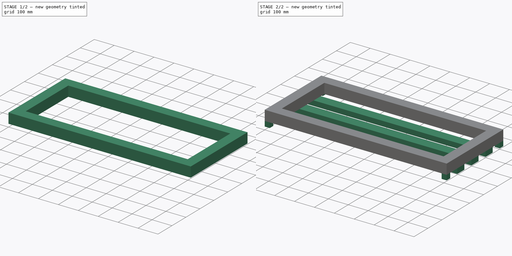
[diagram: build sequence overview — one tinted view per stage of 2, left to right]
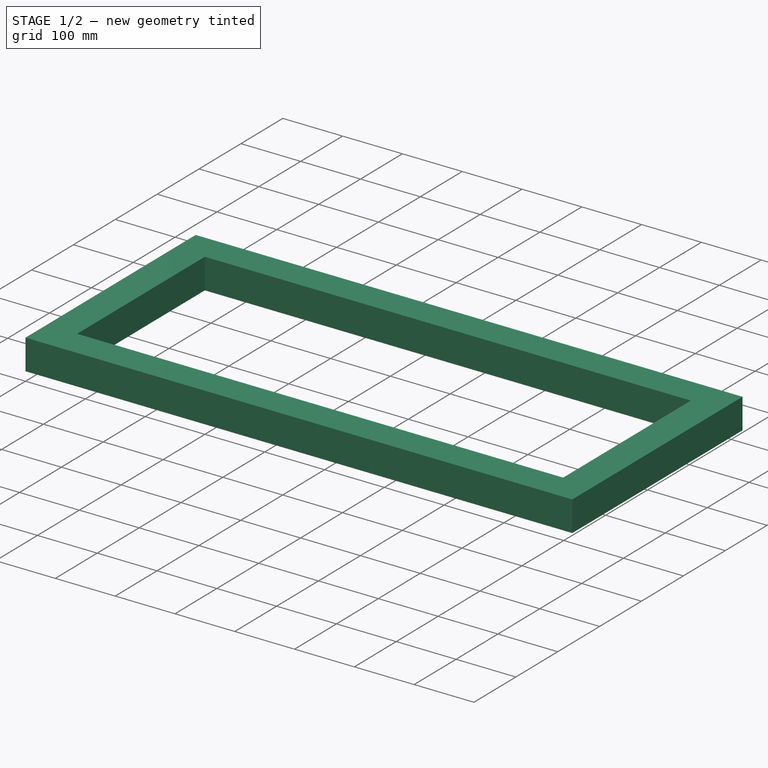
[diagram: stage 1 of 2 — iso view after this stage's code; geometry added in this stage tinted green]
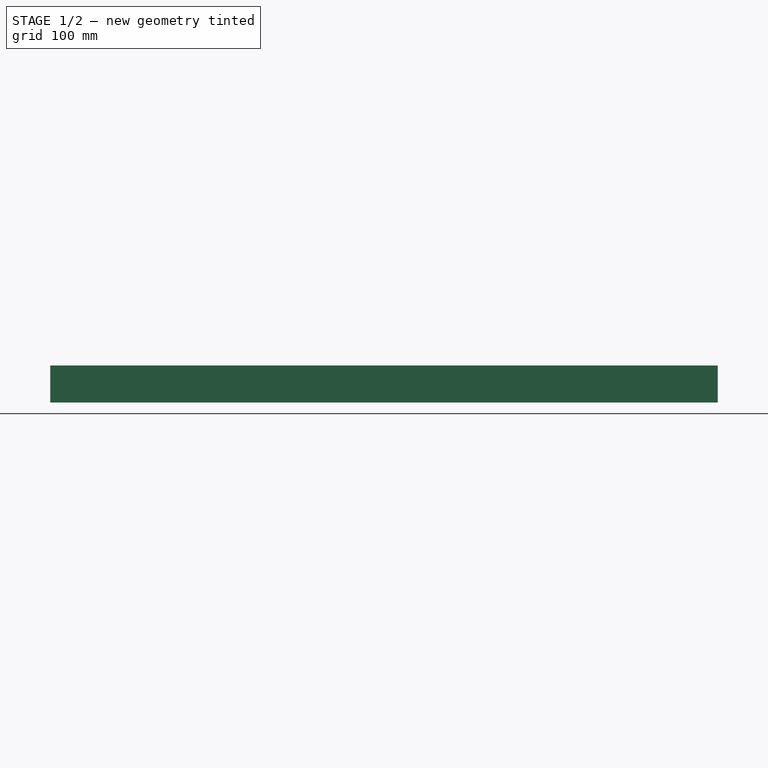
[diagram: stage 1 of 2 — front view after this stage's code; geometry added in this stage tinted green]
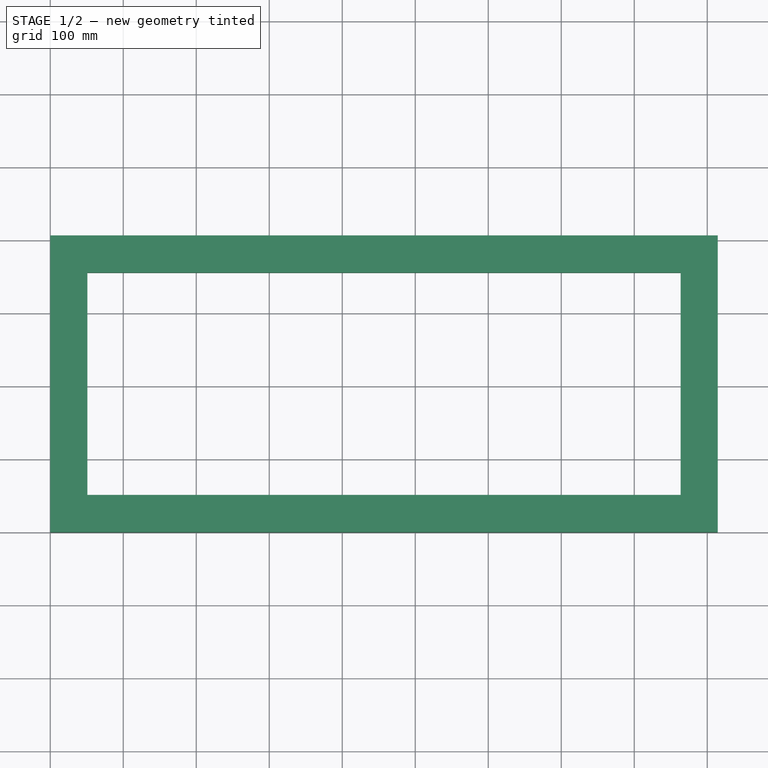
[diagram: stage 1 of 2 — top view after this stage's code; geometry added in this stage tinted green]
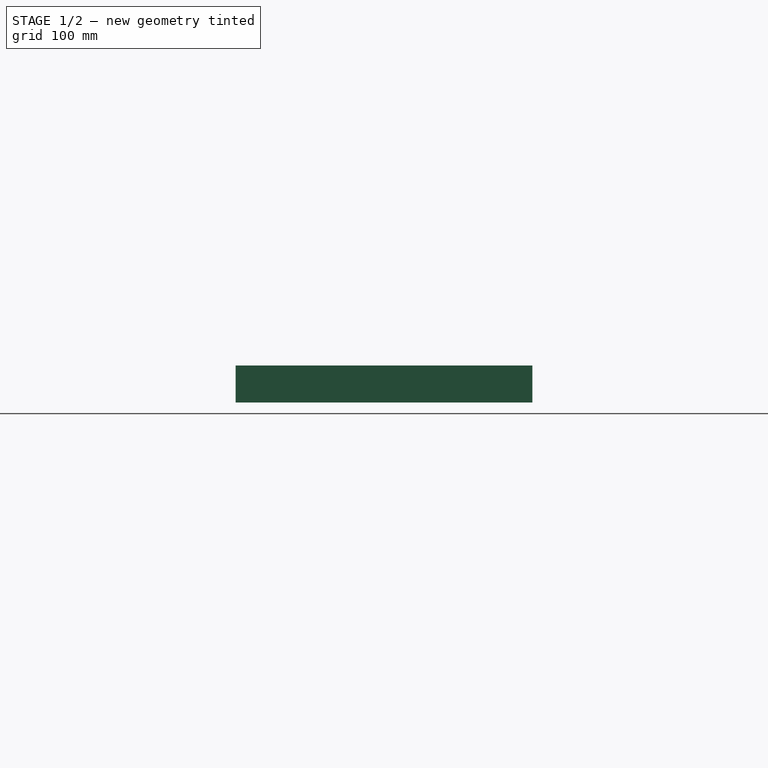
[diagram: stage 1 of 2 — right view after this stage's code; geometry added in this stage tinted green]
FCSTD DOCUMENT  (FreeCAD 0.19R24276 (Git))
Label: seat bench
License: All rights reserved
LicenseURL: http://en.wikipedia.org/wiki/All_rights_reserved
objects: Sketcher::SketchObject×4, PartDesign::Pad×3, PartDesign::Pocket×1, PartDesign::Body×1
note: 13 computed .brp shape members not serialized (recipe doc carries the construction recipe); baked Part::Feature solids carry a one-line shape summary decoded from their .brp

FEATURE [Sketcher::SketchObject] Sketch
  FullyConstrained = true
  MapMode = 5
  Support = -> [XY_Plane]
  sketch-geometry (4):
    g0: LineSegment StartX=0 StartY=0 StartZ=0 EndX=914.4 EndY=0 EndZ=0
    g1: LineSegment StartX=914.4 StartY=0 StartZ=0 EndX=914.4 EndY=406.4 EndZ=0
    g2: LineSegment StartX=914.4 StartY=406.4 StartZ=0 EndX=0 EndY=406.4 EndZ=0
    g3: LineSegment StartX=0 StartY=406.4 StartZ=0 EndX=0 EndY=0 EndZ=0
  constraints (11):
    c: Coincident(g0,g1)
    c: Coincident(g1,g2)
    c: Coincident(g2,g3)
    c: Coincident(g3,g0)
    c: Horizontal(g0)
    c: Horizontal(g2)
    c: Vertical(g1)
    c: Vertical(g3)
    c: Coincident(g0,g-1)
    c: DistanceX(g2,g2) = 914.4
    c: DistanceY(g3,g3) = 406.4
FEATURE [PartDesign::Pad] Pad
  Direction = (1,1,1)
  Length = 50.8
  Length2 = 100
  Profile = -> Sketch
  Type = 0
FEATURE [Sketcher::SketchObject] Sketch001
  ExternalGeometry = -> [Pad]
  FullyConstrained = true
  MapMode = 5
  Placement = pos=(0,0,50.8) rot=(0,0,1;0rad)
  Support = -> [Pad]
  sketch-geometry (4):
    g0: LineSegment StartX=50.8 StartY=355.6 StartZ=0 EndX=863.6 EndY=355.6 EndZ=0
    g1: LineSegment StartX=863.6 StartY=355.6 StartZ=0 EndX=863.6 EndY=50.8 EndZ=0
    g2: LineSegment StartX=863.6 StartY=50.8 StartZ=0 EndX=50.8 EndY=50.8 EndZ=0
    g3: LineSegment StartX=50.8 StartY=50.8 StartZ=0 EndX=50.8 EndY=355.6 EndZ=0
  constraints (12):
    c: Coincident(g0,g1)
    c: Coincident(g1,g2)
    c: Coincident(g2,g3)
    c: Coincident(g3,g0)
    c: Horizontal(g0)
    c: Horizontal(g2)
    c: Vertical(g1)
    c: Vertical(g3)
    c: DistanceX(g2,g2) = 812.8
    c: DistanceX(g-4,g0) = 50.8
    c: DistanceY(g1,g1) = 304.8
    c: DistanceY(g0,g-4) = 50.8
FEATURE [PartDesign::Pocket] Pocket
  BaseFeature = -> Pad
  Length = 5
  Length2 = 100
  Profile = -> Sketch001
  Type = 1
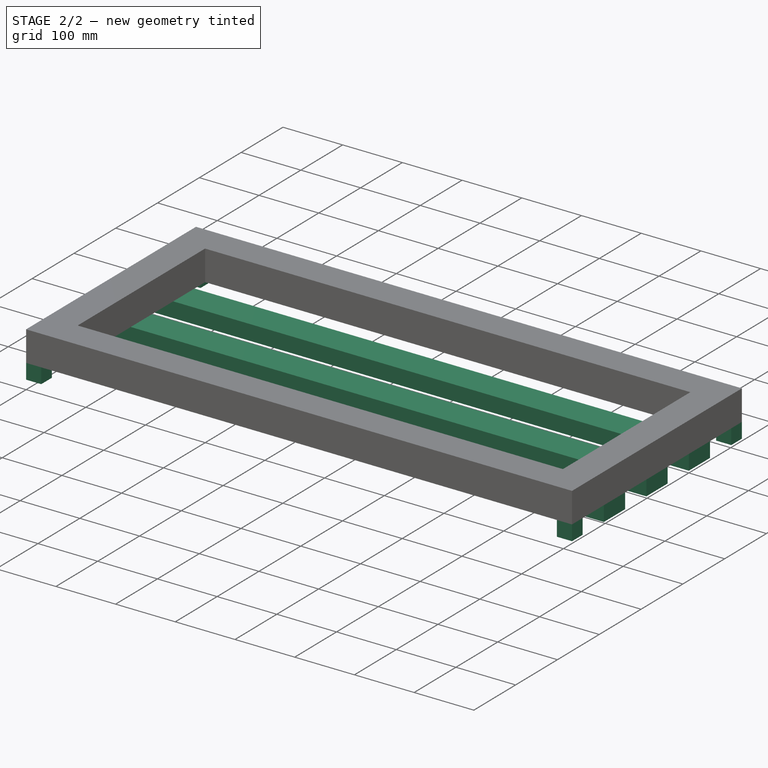
[diagram: stage 2 of 2 — iso view after this stage's code; geometry added in this stage tinted green]
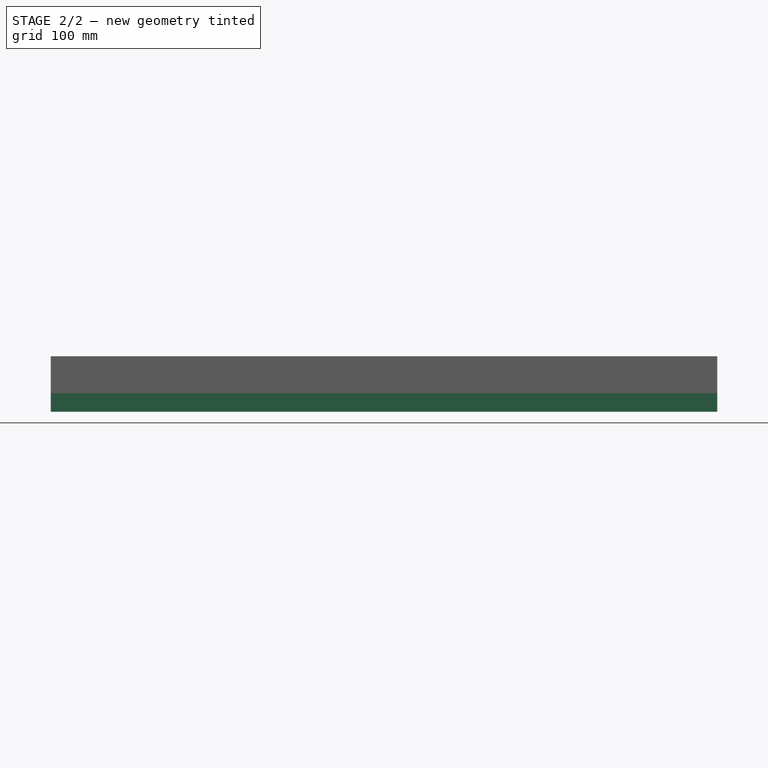
[diagram: stage 2 of 2 — front view after this stage's code; geometry added in this stage tinted green]
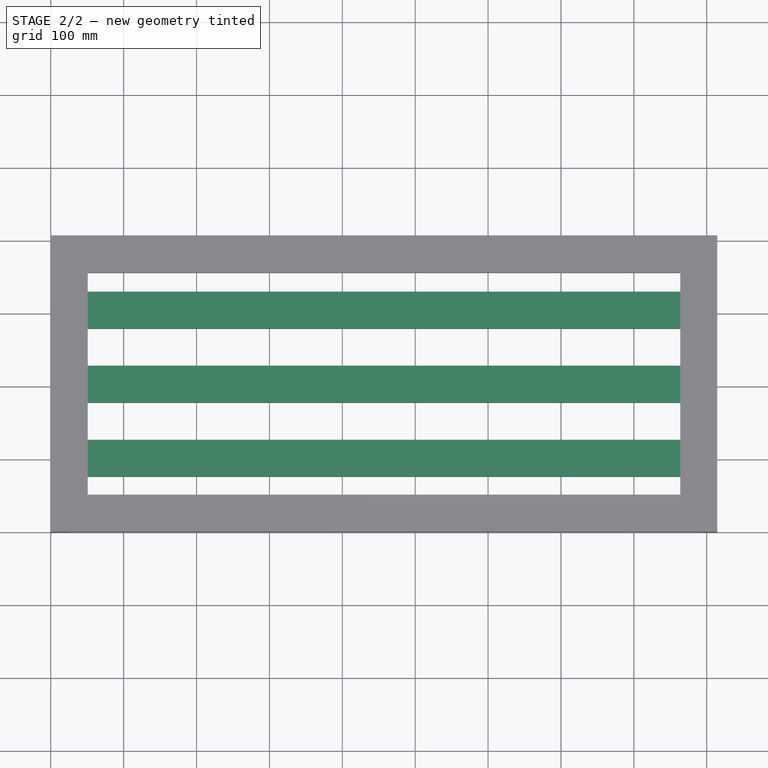
[diagram: stage 2 of 2 — top view after this stage's code; geometry added in this stage tinted green]
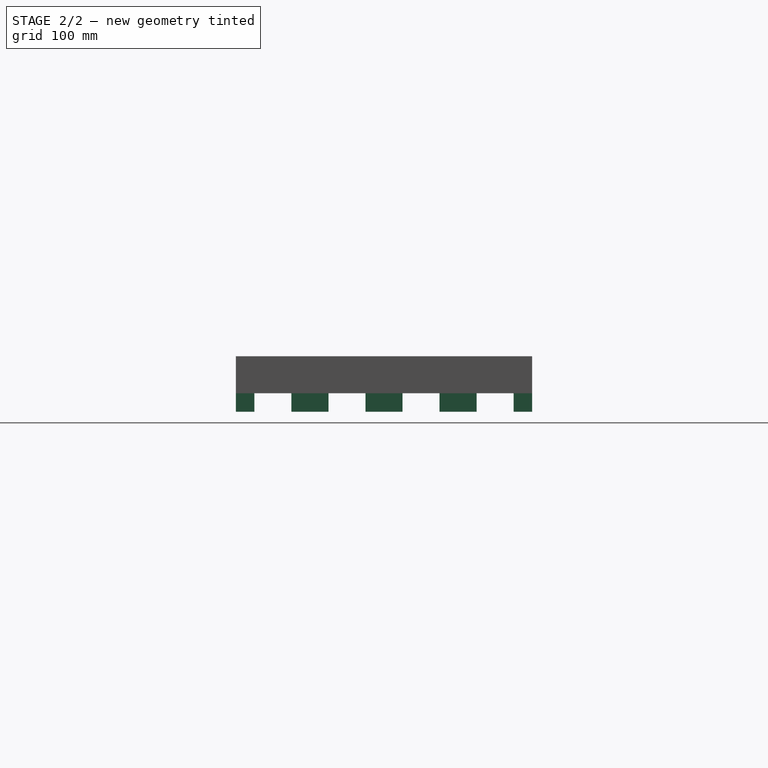
[diagram: stage 2 of 2 — right view after this stage's code; geometry added in this stage tinted green]
FEATURE [Sketcher::SketchObject] Sketch002
  ExternalGeometry = -> [Pocket]
  FullyConstrained = true
  MapMode = 5
  Placement = pos=(0,0,0) rot=(1,0,0;3.14159rad)
  Support = -> [Pocket]
  sketch-geometry (12):
    g0: LineSegment StartX=0 StartY=-76.2 StartZ=0 EndX=914.4 EndY=-76.2 EndZ=0
    g1: LineSegment StartX=914.4 StartY=-76.2 StartZ=0 EndX=914.4 EndY=-127 EndZ=0
    g2: LineSegment StartX=914.4 StartY=-127 StartZ=0 EndX=0 EndY=-127 EndZ=0
    g3: LineSegment StartX=0 StartY=-127 StartZ=0 EndX=0 EndY=-76.2 EndZ=0
    g4: LineSegment StartX=1.8e-15 StartY=-177.8 StartZ=0 EndX=914.4 EndY=-177.8 EndZ=0
    g5: LineSegment StartX=914.4 StartY=-177.8 StartZ=0 EndX=914.4 EndY=-228.6 EndZ=0
    g6: LineSegment StartX=914.4 StartY=-228.6 StartZ=0 EndX=0 EndY=-228.6 EndZ=0
    g7: LineSegment StartX=1.8e-15 StartY=-228.6 StartZ=0 EndX=1.8e-15 EndY=-177.8 EndZ=0
    g8: LineSegment StartX=0 StartY=-279.4 StartZ=0 EndX=914.4 EndY=-279.4 EndZ=0
    g9: LineSegment StartX=914.4 StartY=-279.4 StartZ=0 EndX=914.4 EndY=-330.2 EndZ=0
    g10: LineSegment StartX=914.4 StartY=-330.2 StartZ=0 EndX=0 EndY=-330.2 EndZ=0
    g11: LineSegment StartX=0 StartY=-330.2 StartZ=0 EndX=0 EndY=-279.4 EndZ=0
  constraints (36):
    c: Coincident(g0,g1)
    c: Coincident(g1,g2)
    c: Coincident(g2,g3)
    c: Coincident(g3,g0)
    c: Horizontal(g0)
    c: Horizontal(g2)
    c: Vertical(g1)
    c: Vertical(g3)
    c: Coincident(g4,g5)
    c: Coincident(g5,g6)
    c: Coincident(g6,g7)
    c: Coincident(g7,g4)
    c: Horizontal(g4)
    c: Horizontal(g6)
    c: Vertical(g5)
    c: Vertical(g7)
    c: Coincident(g8,g9)
    c: Coincident(g9,g10)
    c: Coincident(g10,g11)
    c: Coincident(g11,g8)
    c: Horizontal(g8)
    c: Horizontal(g10)
    c: Vertical(g9)
    c: Vertical(g11)
    c: DistanceX(g0,g0) = 914.4
    c: DistanceX(g4,g4) = 914.4
    c: DistanceX(g8,g8) = 914.4
    c: DistanceX(g-1,g0) = 0
    c: DistanceX(g-1,g4) = 0
    c: DistanceX(g-1,g8) = 0
    c: DistanceY(g1,g1) = 50.8
    c: DistanceY(g5,g5) = 50.8
    c: DistanceY(g9,g9) = 50.8
    c: DistanceY(g0,g-4) = 25.4
    c: DistanceY(g-5,g9) = 25.4
    c: DistanceY(g-5,g5) = 127
FEATURE [PartDesign::Pad] Pad001
  BaseFeature = -> Pocket
  Direction = (1,1,1)
  Length = 25.4
  Length2 = 100
  Profile = -> Sketch002
  Type = 0
FEATURE [Sketcher::SketchObject] Sketch003
  ExternalGeometry = -> [Pad001]
  FullyConstrained = true
  MapMode = 5
  Placement = pos=(0,0,0) rot=(1,0,0;3.14159rad)
  Support = -> [Pad001]
  sketch-geometry (16):
    g0: LineSegment StartX=0 StartY=-381 StartZ=0 EndX=25.4 EndY=-381 EndZ=0
    g1: LineSegment StartX=25.4 StartY=-381 StartZ=0 EndX=25.4 EndY=-406.4 EndZ=0
    g2: LineSegment StartX=25.4 StartY=-406.4 StartZ=0 EndX=0 EndY=-406.4 EndZ=0
    g3: LineSegment StartX=0 StartY=-406.4 StartZ=0 EndX=0 EndY=-381 EndZ=0
    g4: LineSegment StartX=889 StartY=-381 StartZ=0 EndX=914.4 EndY=-381 EndZ=0
    g5: LineSegment StartX=914.4 StartY=-381 StartZ=0 EndX=914.4 EndY=-406.4 EndZ=0
    g6: LineSegment StartX=914.4 StartY=-406.4 StartZ=0 EndX=889 EndY=-406.4 EndZ=0
    g7: LineSegment StartX=889 StartY=-406.4 StartZ=0 EndX=889 EndY=-381 EndZ=0
    g8: LineSegment StartX=889 StartY=0 StartZ=0 EndX=914.4 EndY=0 EndZ=0
    g9: LineSegment StartX=914.4 StartY=0 StartZ=0 EndX=914.4 EndY=-25.4 EndZ=0
    g10: LineSegment StartX=914.4 StartY=-25.4 StartZ=0 EndX=889 EndY=-25.4 EndZ=0
    g11: LineSegment StartX=889 StartY=-25.4 StartZ=0 EndX=889 EndY=0 EndZ=0
    g12: LineSegment StartX=0 StartY=0 StartZ=0 EndX=25.4 EndY=0 EndZ=0
    g13: LineSegment StartX=25.4 StartY=0 StartZ=0 EndX=25.4 EndY=-25.4 EndZ=0
    g14: LineSegment StartX=25.4 StartY=-25.4 StartZ=0 EndX=0 EndY=-25.4 EndZ=0
    g15: LineSegment StartX=0 StartY=-25.4 StartZ=0 EndX=0 EndY=0 EndZ=0
  constraints (48):
    c: Coincident(g0,g1)
    c: Coincident(g1,g2)
    c: Coincident(g2,g3)
    c: Coincident(g3,g0)
    c: Horizontal(g0)
    c: Horizontal(g2)
    c: Vertical(g1)
    c: Vertical(g3)
    c: Coincident(g4,g5)
    c: Coincident(g5,g6)
    c: Coincident(g6,g7)
    c: Coincident(g7,g4)
    c: Horizontal(g4)
    c: Horizontal(g6)
    c: Vertical(g5)
    c: Vertical(g7)
    c: Coincident(g8,g9)
    c: Coincident(g9,g10)
    c: Coincident(g10,g11)
    c: Coincident(g11,g8)
    c: Horizontal(g8)
    c: Horizontal(g10)
    c: Vertical(g9)
    c: Vertical(g11)
    c: Coincident(g12,g13)
    c: Coincident(g13,g14)
    c: Coincident(g14,g15)
    c: Coincident(g15,g12)
    c: Horizontal(g12)
    c: Horizontal(g14)
    c: Vertical(g13)
    c: Vertical(g15)
    c: DistanceY(g13,g13) = 25.4
    c: DistanceY(g1,g1) = 25.4
    c: DistanceY(g5,g5) = 25.4
    c: DistanceY(g9,g9) = 25.4
    c: DistanceX(g10,g10) = 25.4
    c: DistanceX(g6,g6) = 25.4
    c: DistanceX(g2,g2) = 25.4
    c: DistanceX(g14,g14) = 25.4
    c: DistanceY(g12,g-1) = 0
    c: DistanceX(g-6,g14) = 0
    c: DistanceX(g-5,g2) = 0
    c: DistanceY(g-5,g1) = 0
    c: DistanceY(g-4,g5) = 0
    c: DistanceX(g5,g-4) = 0
    c: DistanceY(g8,g-8) = 0
    c: DistanceX(g9,g-8) = 0
FEATURE [PartDesign::Pad] Pad002
  BaseFeature = -> Pad001
  Direction = (1,1,1)
  Length = 25.4
  Length2 = 100
  Profile = -> Sketch003
  Type = 0
FEATURE [PartDesign::Body] Body
  Group = -> [Sketch,Pad,Sketch001,Pocket,Sketch002,Pad001,Sketch003,Pad002]
  Origin = -> Origin
  Tip = -> Pad002
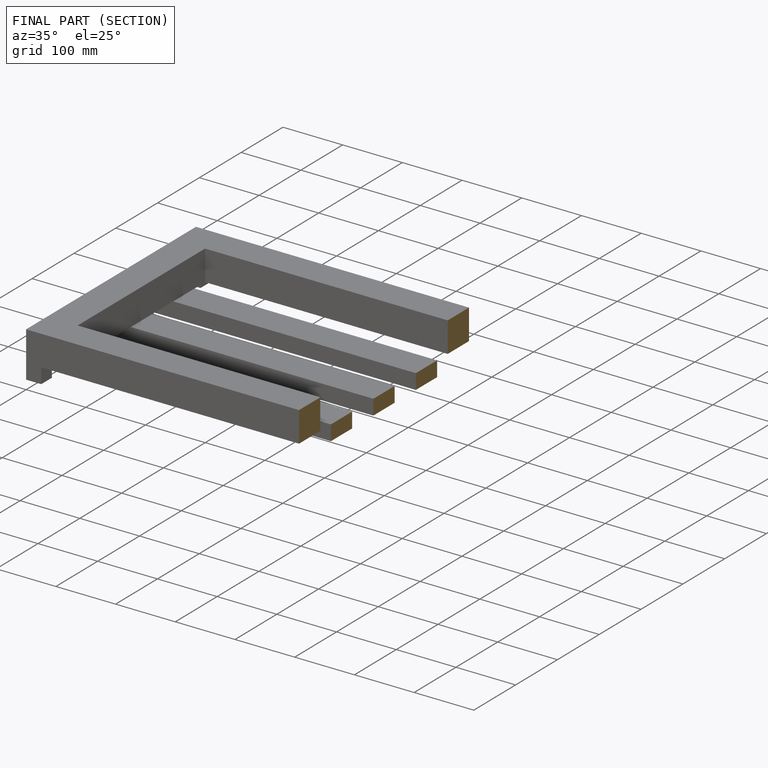
[diagram: finished part — half-section view (interior)]
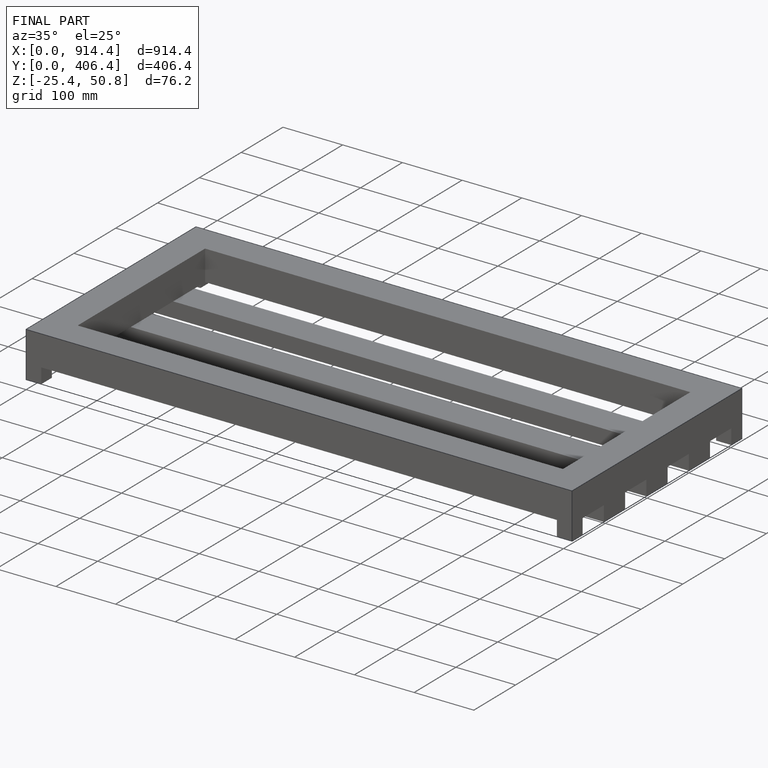
[diagram: finished part — iso view with bounding-box wireframe]
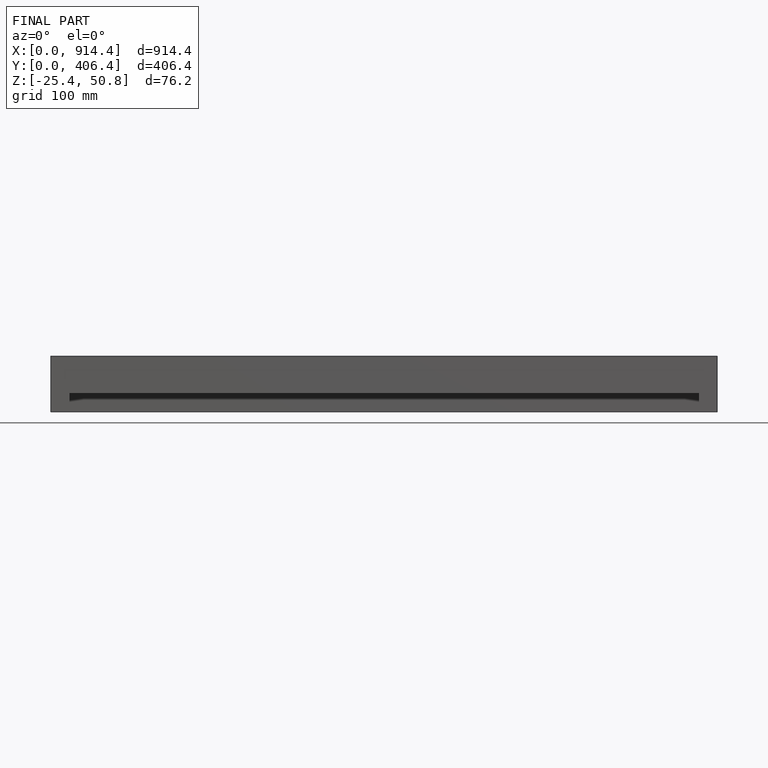
[diagram: finished part — front view with bounding-box wireframe]
